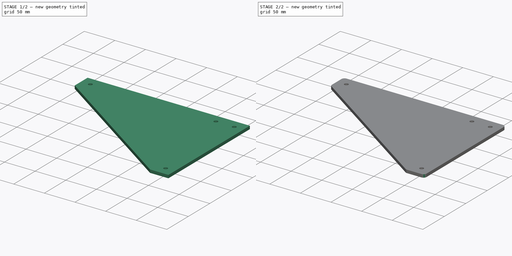
[diagram: build sequence overview — one tinted view per stage of 2, left to right]
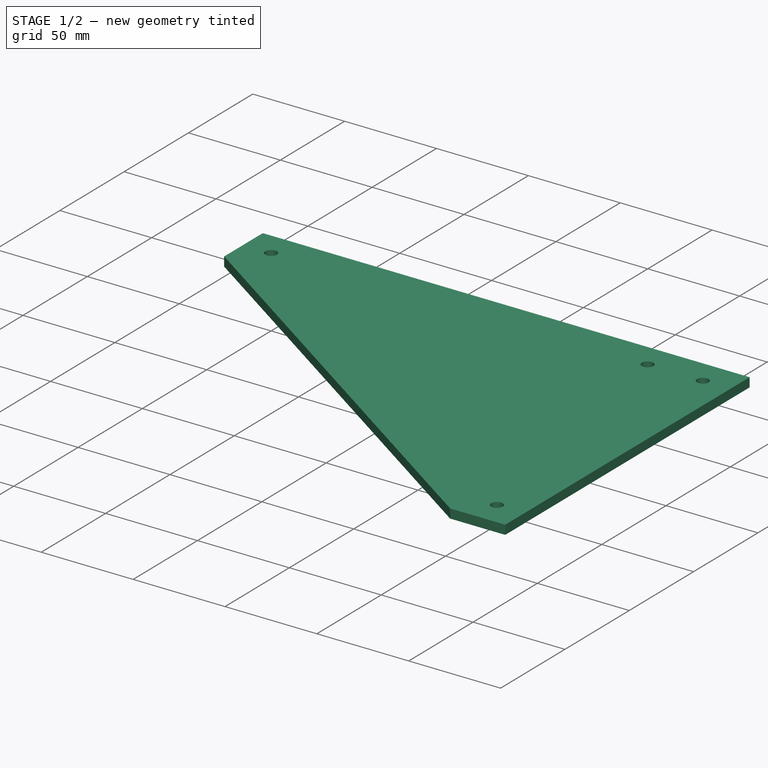
[diagram: stage 1 of 2 — iso view after this stage's code; geometry added in this stage tinted green]
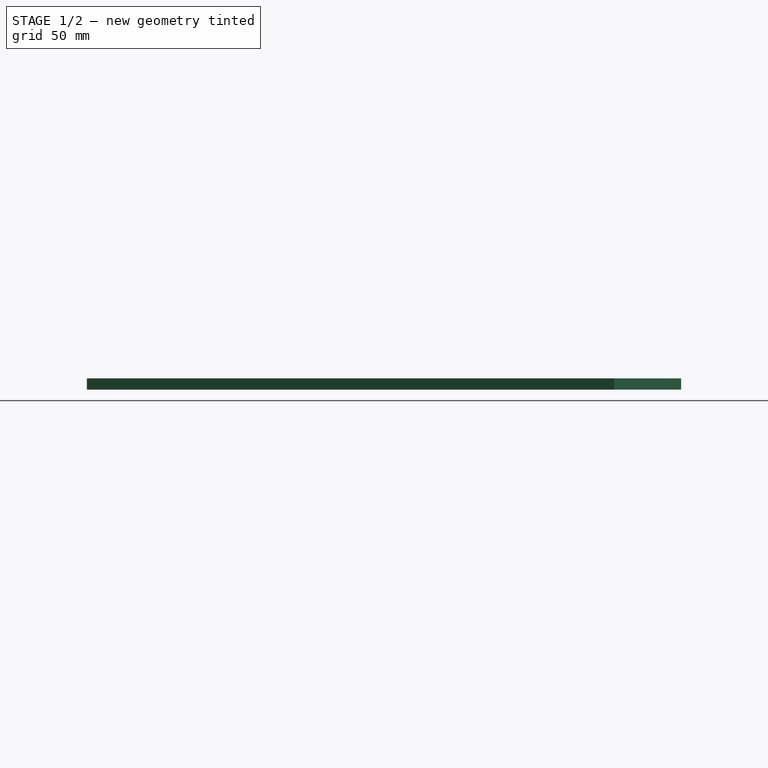
[diagram: stage 1 of 2 — front view after this stage's code; geometry added in this stage tinted green]
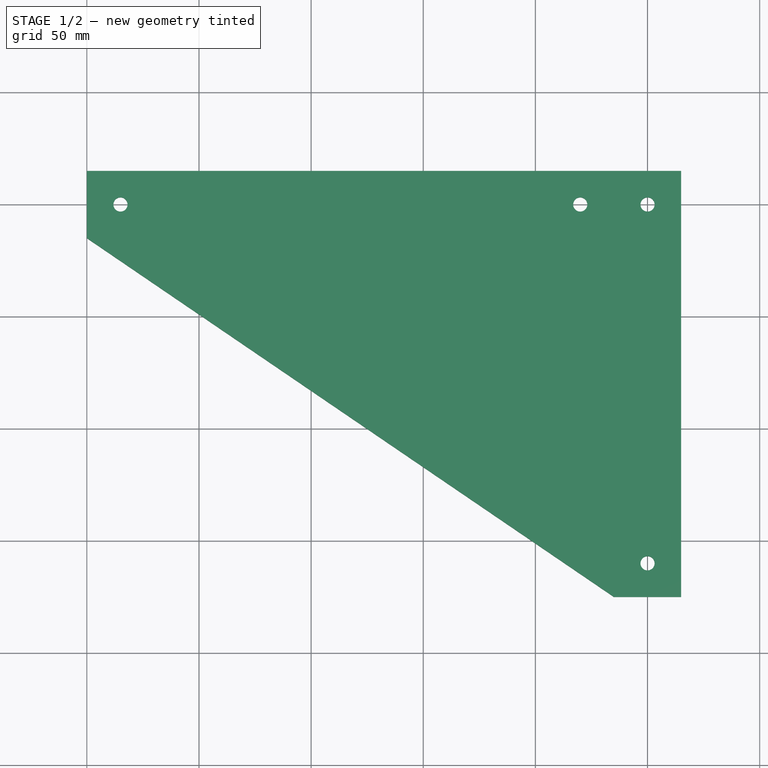
[diagram: stage 1 of 2 — top view after this stage's code; geometry added in this stage tinted green]
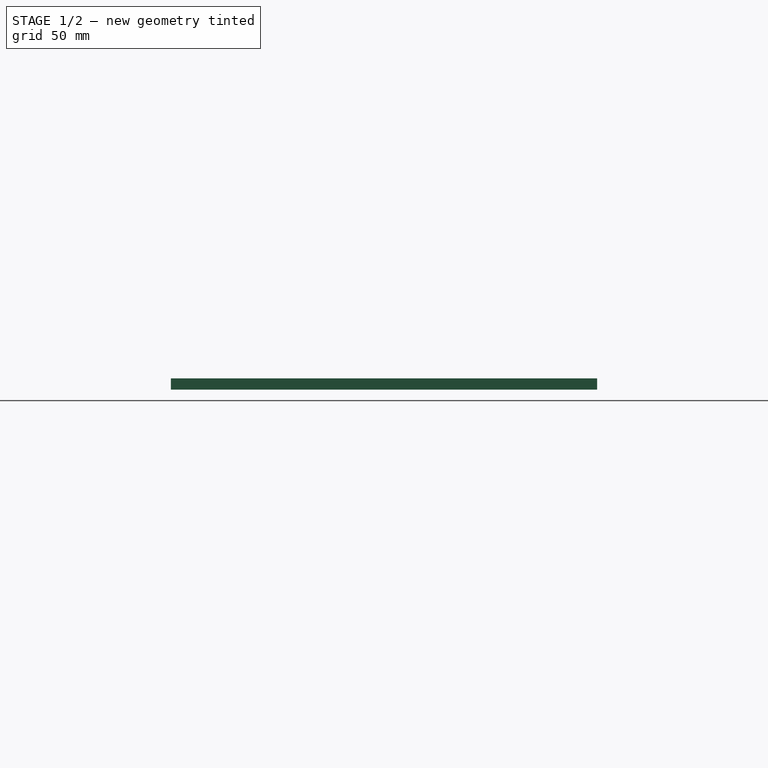
[diagram: stage 1 of 2 — right view after this stage's code; geometry added in this stage tinted green]
FCSTD DOCUMENT  (FreeCAD 0.19R20209 (Git))
Label: 265x195_trekant
License: Creative Commons Attribution
LicenseURL: http://creativecommons.org/licenses/by/4.0/
objects: Sketcher::SketchObject×1, PartDesign::Pad×1, PartDesign::Fillet×1, PartDesign::Body×1
note: 6 computed .brp shape members not serialized (recipe doc carries the construction recipe); baked Part::Feature solids carry a one-line shape summary decoded from their .brp

FEATURE [Sketcher::SketchObject] Sketch
  MapMode = 5
  Support = -> [XY_Plane]
  expr: Constraints[23] = 550 / 2 - 10
  sketch-geometry (9):
    g0: LineSegment StartX=-250 StartY=15 StartZ=0 EndX=15 EndY=15 EndZ=0
    g1: LineSegment StartX=15 StartY=15 StartZ=0 EndX=15 EndY=-175 EndZ=0
    g2: LineSegment StartX=-250 StartY=15 StartZ=0 EndX=-250 EndY=-15 EndZ=0
    g3: LineSegment StartX=-15 StartY=-175 StartZ=0 EndX=15 EndY=-175 EndZ=0
    g4: Circle CenterX=0 CenterY=0 CenterZ=0 NormalX=0 NormalY=0 NormalZ=1 AngleXU=0 Radius=3.15
    g5: Circle CenterX=0 CenterY=-160 CenterZ=0 NormalX=0 NormalY=0 NormalZ=1 AngleXU=0 Radius=3.15
    g6: Circle CenterX=-30 CenterY=0 CenterZ=0 NormalX=0 NormalY=0 NormalZ=1 AngleXU=0 Radius=3.15
    g7: Circle CenterX=-235 CenterY=0 CenterZ=0 NormalX=0 NormalY=0 NormalZ=1 AngleXU=0 Radius=3.15
    g8: LineSegment StartX=-250 StartY=-15 StartZ=0 EndX=-15 EndY=-175 EndZ=0
  constraints (26):
    c: Horizontal(g0)
    c: Coincident(g0,g1)
    c: Vertical(g1)
    c: DistanceY(g1,g1) = 190
    c: DistanceY(g-1,g0) = 15
    c: DistanceX(g-1,g0) = 15
    c: Vertical(g2)
    c: Horizontal(g3)
    c: Equal(g3,g2)
    c: DistanceX(g3,g3) = 30
    c: Coincident(g3,g1)
    c: Coincident(g2,g0)
    c: Equal(g4,g6)
    c: Equal(g6,g7)
    c: Diameter(g4) = 6.3
    c: Coincident(g4,g-1)
    c: PointOnObject(g5,g-2)
    c: PointOnObject(g7,g-1)
    c: DistanceX(g0,g7) = 15
    c: DistanceY(g1,g5) = 15
    c: DistanceX(g6,g4) = 30
    c: PointOnObject(g6,g-1)
    c: Equal(g5,g4)
    c: DistanceX(g0,g0) = 265
    c: Coincident(g2,g8)
    c: Coincident(g8,g3)
FEATURE [PartDesign::Pad] Pad
  Length = 5
  Length2 = 100
  Midplane = true
  Profile = -> Sketch
  Refine = true
  Type = 0
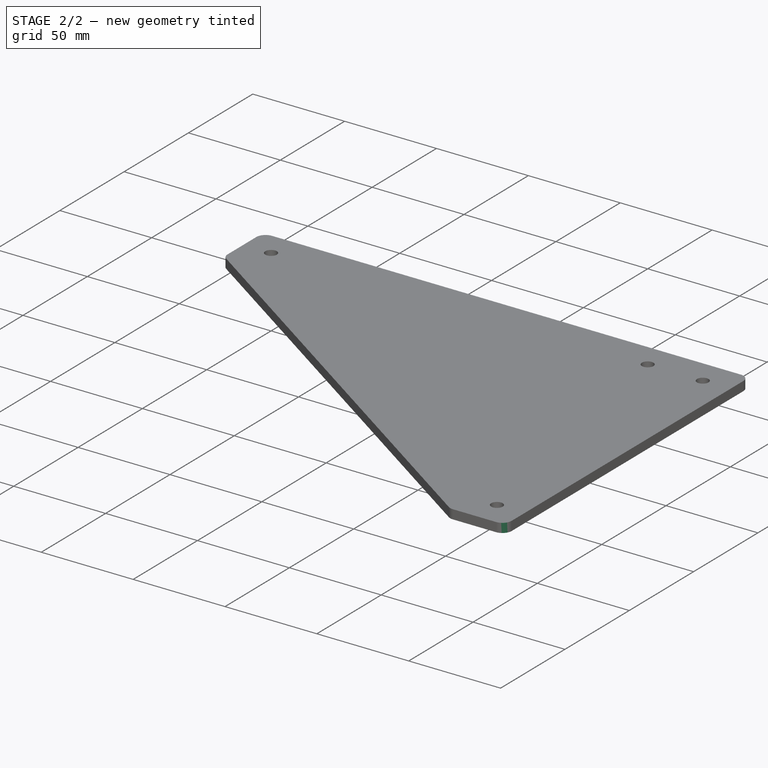
[diagram: stage 2 of 2 — iso view after this stage's code; geometry added in this stage tinted green]
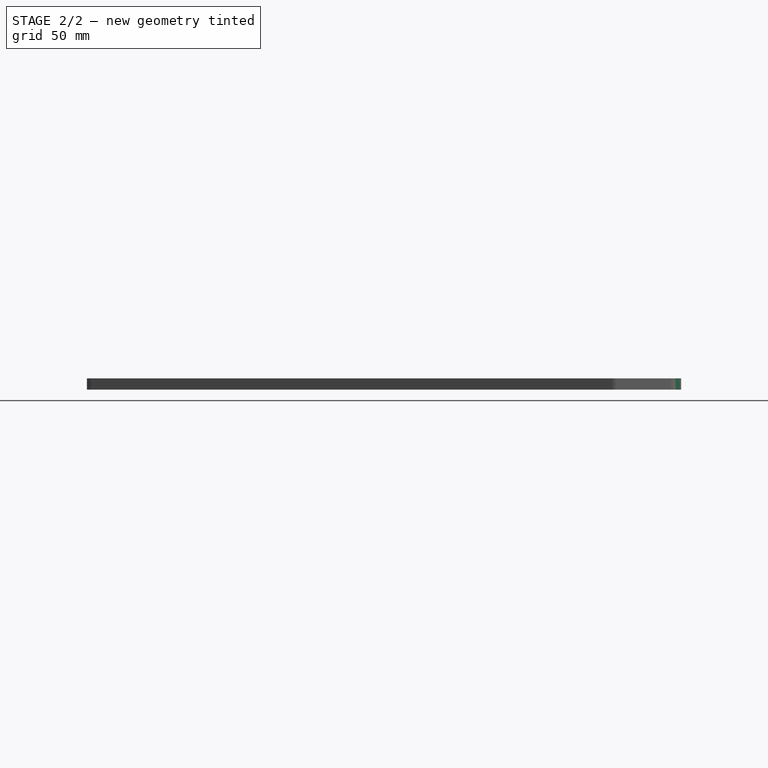
[diagram: stage 2 of 2 — front view after this stage's code; geometry added in this stage tinted green]
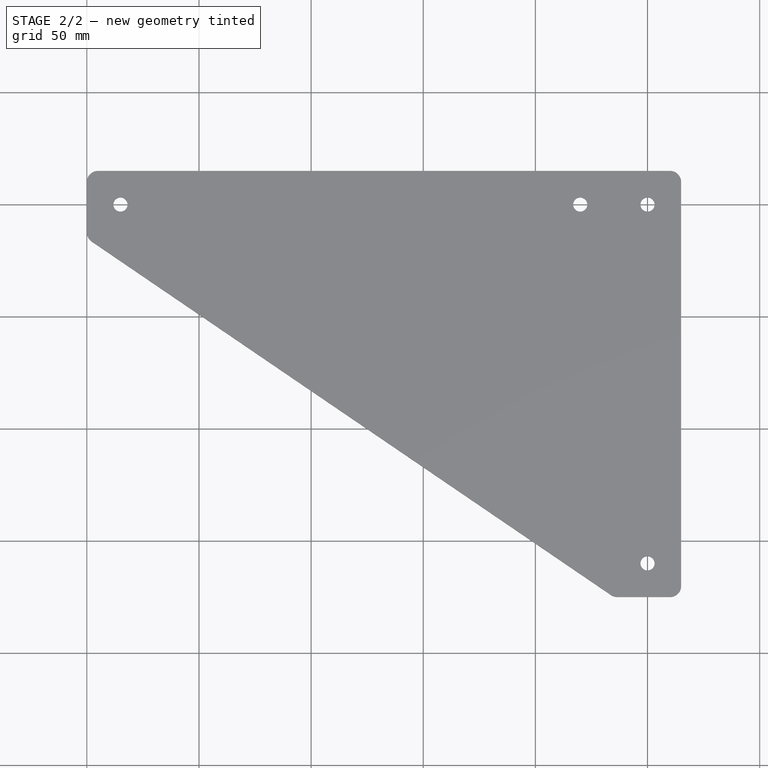
[diagram: stage 2 of 2 — top view after this stage's code; geometry added in this stage tinted green]
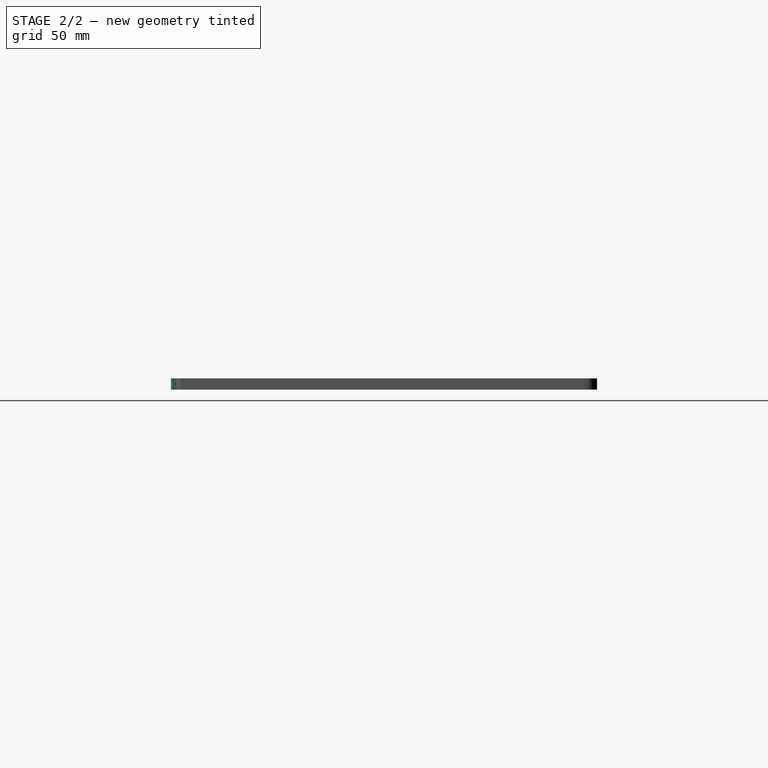
[diagram: stage 2 of 2 — right view after this stage's code; geometry added in this stage tinted green]
FEATURE [PartDesign::Fillet] Fillet
  Base = -> Pad [Edge1,Edge11,Edge2,Edge8,Edge5]
  BaseFeature = -> Pad
  Radius = 5
  Refine = true
  SupportTransform = true
FEATURE [PartDesign::Body] Body
  Group = -> [Sketch,Pad,Fillet]
  Origin = -> Origin
  Tip = -> Fillet
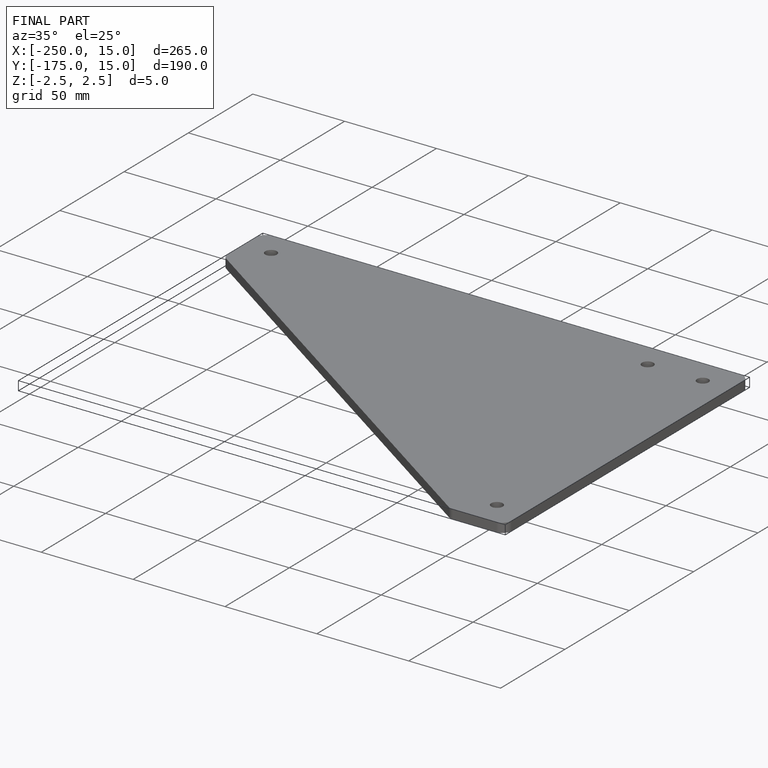
[diagram: finished part — iso view with bounding-box wireframe]
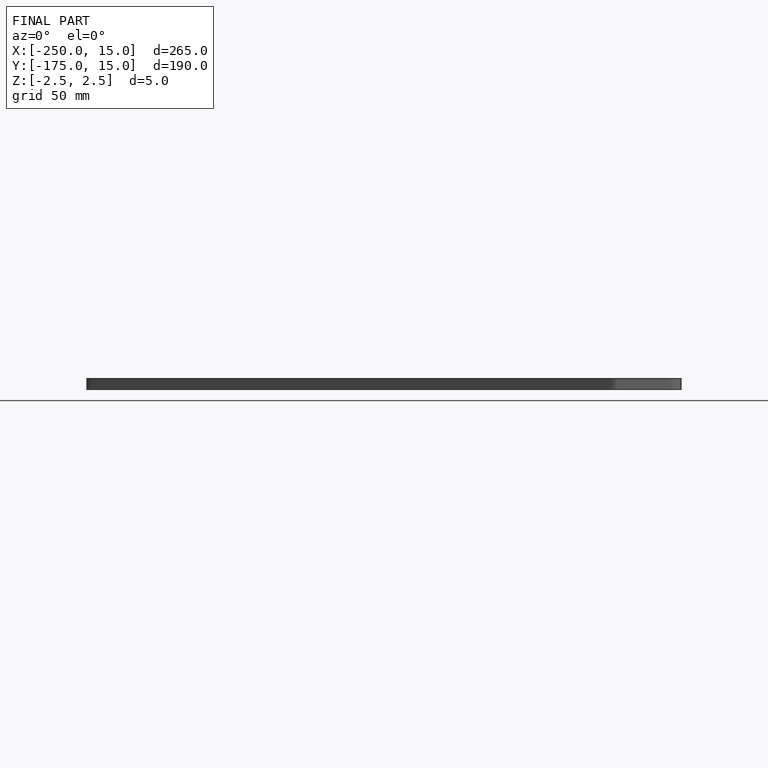
[diagram: finished part — front view with bounding-box wireframe]
